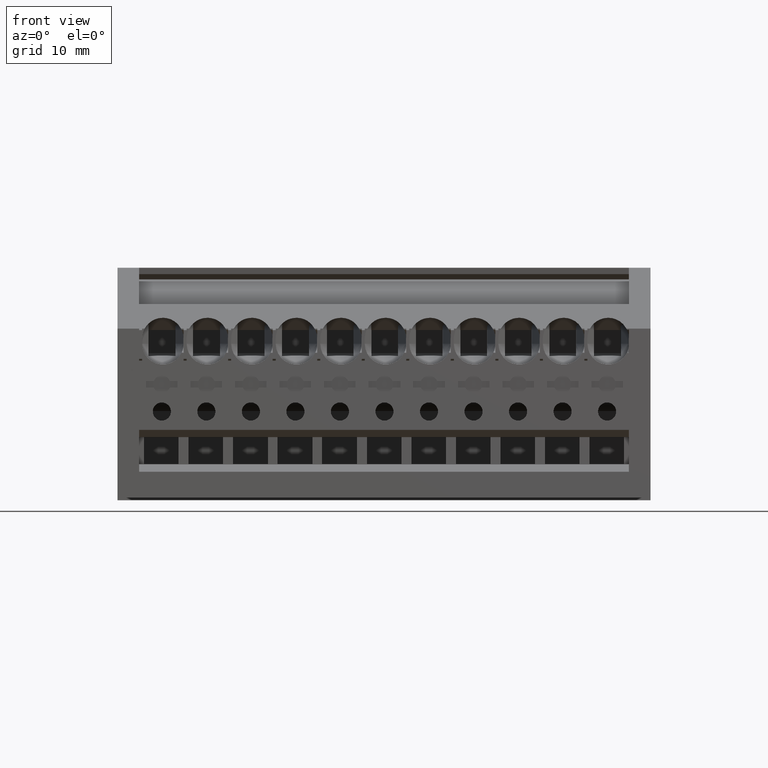
[diagram: clean part render]
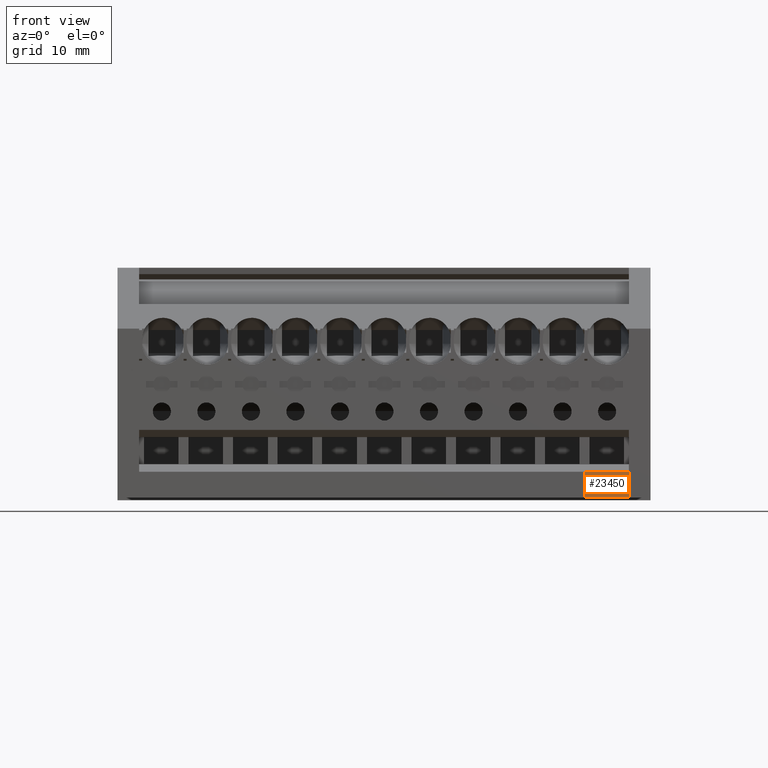
[diagram: same view with one face highlighted and labeled with its STEP entity id]
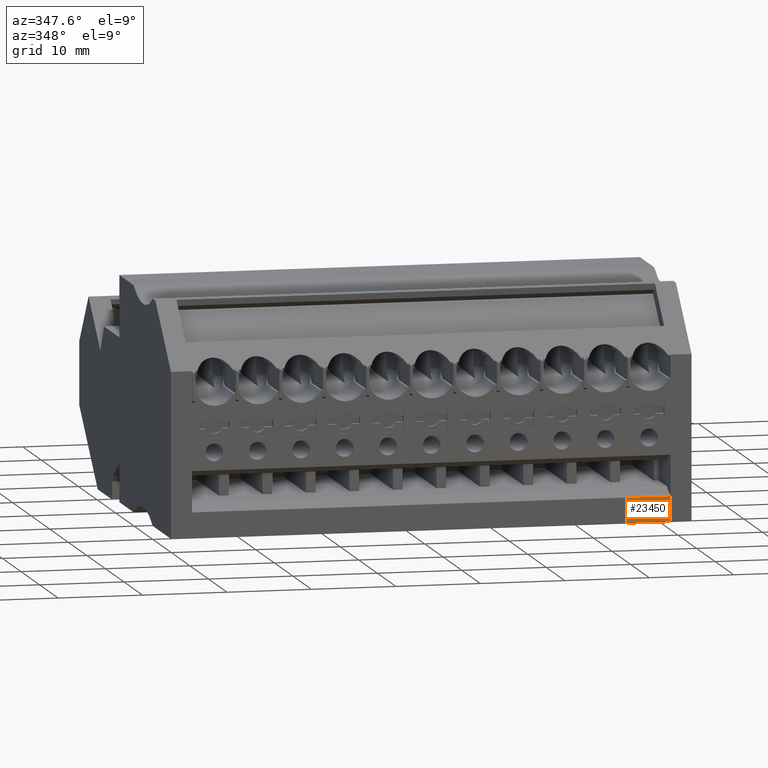
[diagram: same view with one face highlighted and labeled with its STEP entity id]
A machine part, front view. The second image highlights one B-rep face of the part: STEP entity #23450.
A second angle (auxiliary view) of the same face is appended — the face is thin or edge-on in the first view.
In plain terms, the highlighted planar face has unit normal (0, 1, -0).
Its self-contained STEP definition (entity closure, byte-faithful):
#18550=CARTESIAN_POINT('',(420.453158743445,670.93434764981,
88.7199999942416));
#18560=DIRECTION('',(1.11377720129513E-10,5.56333266435468E-10,1.));
#18570=VECTOR('',#18560,1.);
#18580=LINE('',#18550,#18570);
#21490=CARTESIAN_POINT('',(420.453158790746,695.959358744678,
73.2699999806987));
#21500=DIRECTION('',(1.,-1.80696546619061E-9,-7.92262452384238E-11));
#21510=DIRECTION('',(-1.80696546614423E-9,-1.,5.85356133228783E-10));
#21520=AXIS2_PLACEMENT_3D('',#21490,#21500,#21510);
#21530=PLANE('',#21520);
#21630=CARTESIAN_POINT('',(420.453158749298,673.938901461984,
88.7199999924212));
#21640=DIRECTION('',(1.11377719956186E-10,4.67361372848525E-10,1.));
#21650=VECTOR('',#21640,1.);
#21660=LINE('',#21630,#21650);
#23190=CARTESIAN_POINT('',(420.453158746887,670.934347669682,
119.620000000388));
#23200=VERTEX_POINT('',#23190);
#23210=CARTESIAN_POINT('',(420.453158749607,670.93434767268,
124.769999992933));
#23220=VERTEX_POINT('',#23210);
#23230=EDGE_CURVE('',#23200,#23220,#18580,.T.);
#23240=ORIENTED_EDGE('',*,*,#23230,.T.);
#23250=CARTESIAN_POINT('',(420.453158777235,686.450091444857,
119.619999991305));
#23260=DIRECTION('',(-1.80696546614423E-9,-1.,5.85356141100162E-10));
#23270=VECTOR('',#23260,1.);
#23280=LINE('',#23250,#23270);
#23290=CARTESIAN_POINT('',(420.453158754628,673.938901476426,
119.619999998629));
#23300=VERTEX_POINT('',#23290);
#23310=EDGE_CURVE('',#23300,#23200,#23280,.T.);
#23320=ORIENTED_EDGE('',*,*,#23310,.T.);
#23330=CARTESIAN_POINT('',(420.453158755036,673.938901473005,
124.769999991459));
#23340=VERTEX_POINT('',#23330);
#23350=EDGE_CURVE('',#23300,#23340,#21660,.T.);
#23360=ORIENTED_EDGE('',*,*,#23350,.F.);
#23370=CARTESIAN_POINT('',(420.453158777643,686.4500915187,
124.769999985319));
#23380=DIRECTION('',(1.80696546614428E-9,1.,-4.90743030014487E-10));
#23390=VECTOR('',#23380,1.);
#23400=LINE('',#23370,#23390);
#23410=EDGE_CURVE('',#23220,#23340,#23400,.T.);
#23420=ORIENTED_EDGE('',*,*,#23410,.T.);
#23430=EDGE_LOOP('',(#23420,#23360,#23320,#23240));
#23440=FACE_OUTER_BOUND('',#23430,.T.);
#23450=ADVANCED_FACE('',(#23440),#21530,.F.);